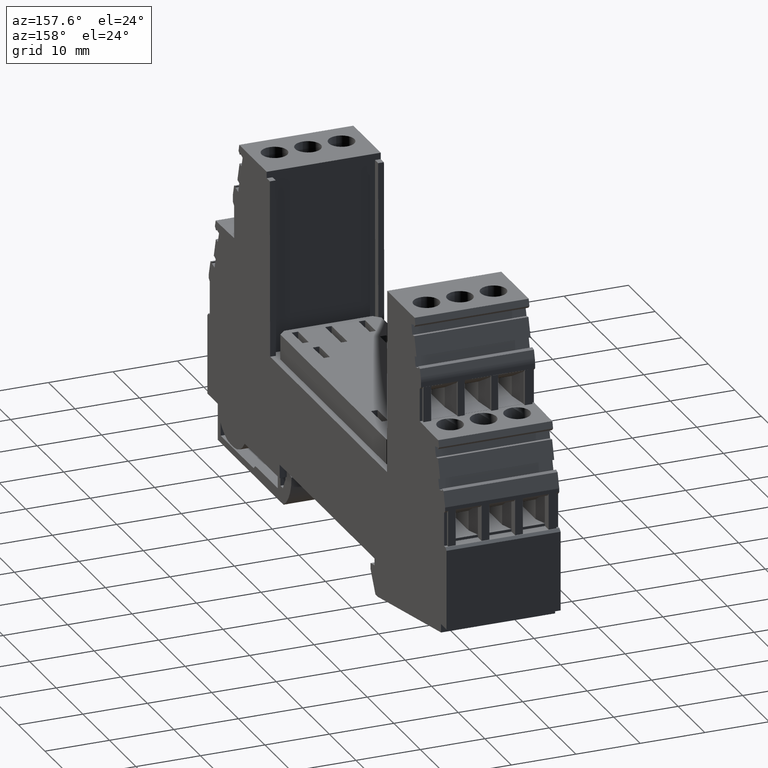
[diagram: clean part render]
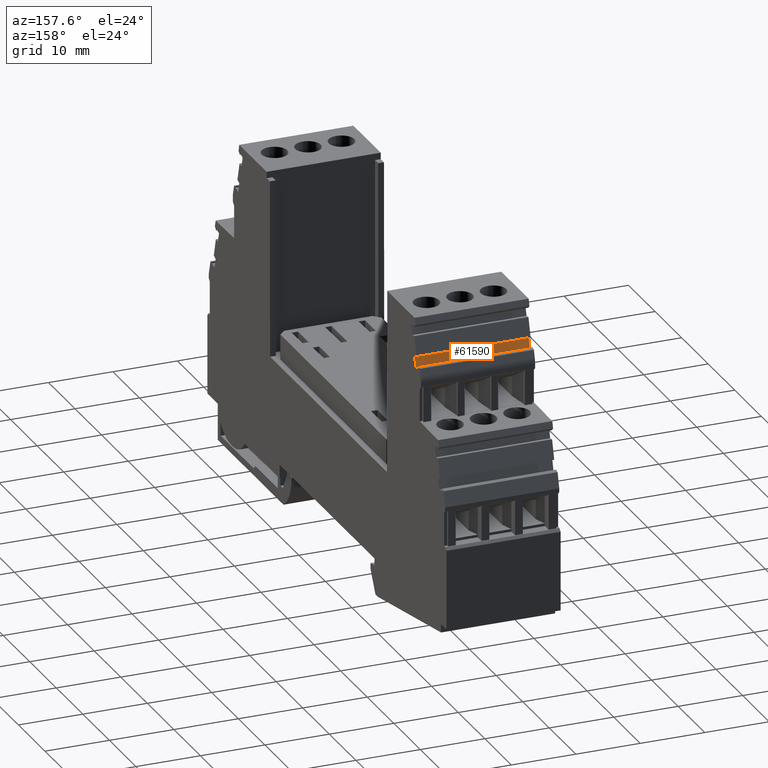
[diagram: same view with one face highlighted and labeled with its STEP entity id]
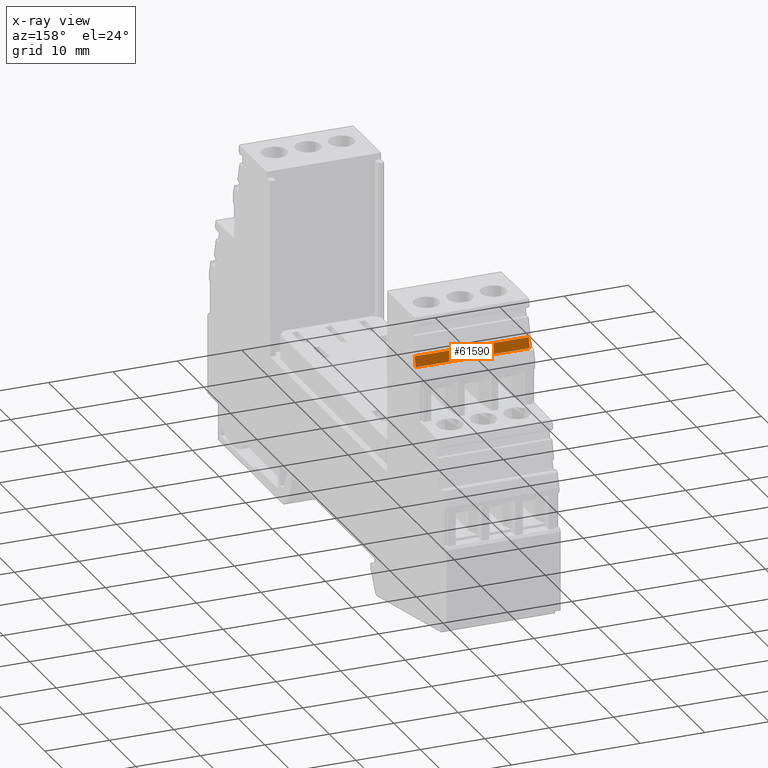
[diagram: x-ray of the same camera — body ghosted, the highlighted face saturated]
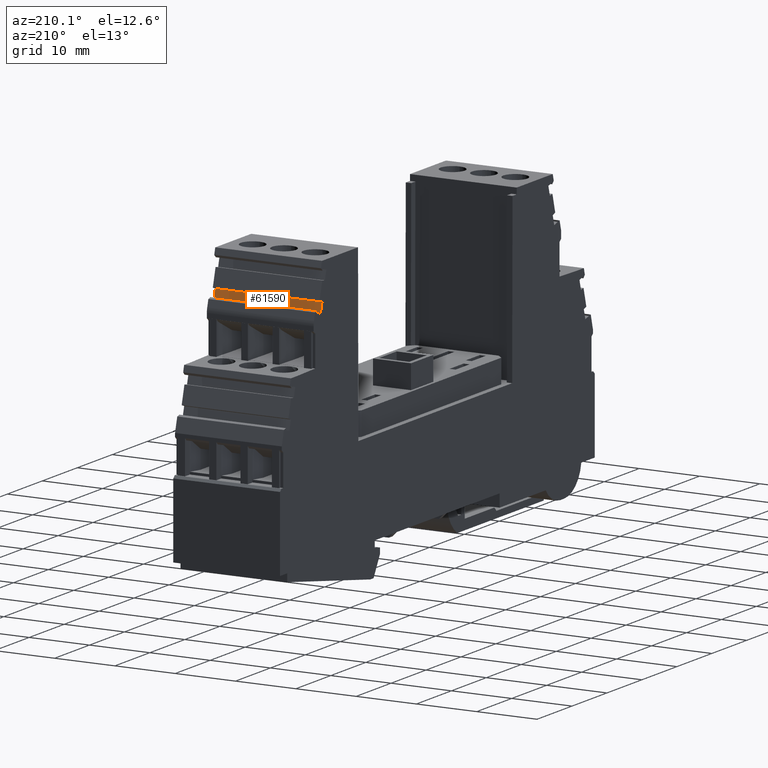
[diagram: same view with one face highlighted and labeled with its STEP entity id]
A machine part, auxiliary view. The second image highlights one B-rep face of the part: STEP entity #61590.
The next image is the same camera in x-ray: the body ghosted, the highlighted face saturated — about 0% of this face is hidden behind the body in this view.
A second angle (auxiliary view) of the same face is appended — the face is thin or edge-on in the first view.
In plain terms, the highlighted planar face has unit normal (-0, -0.9646, -0.2639).
Its self-contained STEP definition (entity closure, byte-faithful):
#2680=CARTESIAN_POINT('',(102.339205808823,55.0005950584348,-37.3));
#2690=VERTEX_POINT('',#2680);
#2720=CARTESIAN_POINT('',(122.774976116623,-19.6999999999998,-37.3));
#2730=DIRECTION('',(-0.263873049965258,0.96455741845783,0.));
#2740=VECTOR('',#2730,1.);
#2750=LINE('',#2720,#2740);
#2760=CARTESIAN_POINT('',(102.760580329029,53.4603092298247,-37.3));
#2770=VERTEX_POINT('',#2760);
#2780=EDGE_CURVE('',#2770,#2690,#2750,.T.);
#18200=CARTESIAN_POINT('',(102.760580329029,53.4603092298247,-55.));
#18210=VERTEX_POINT('',#18200);
#18240=CARTESIAN_POINT('',(111.772264199668,20.5191410000002,-55.));
#18250=DIRECTION('',(0.263873049965258,-0.96455741845783,
-2.37408957350071E-21));
#18260=VECTOR('',#18250,1.);
#18270=LINE('',#18240,#18260);
#18280=CARTESIAN_POINT('',(102.339205808823,55.0005950584348,-55.));
#18290=VERTEX_POINT('',#18280);
#18300=EDGE_CURVE('',#18290,#18210,#18270,.T.);
#61380=CARTESIAN_POINT('',(102.628643804046,53.9425879390539,-55.));
#61390=DIRECTION('',(-0.96455741845783,-0.263873049965258,
1.18322510415871E-16));
#61400=DIRECTION('',(0.263873049965258,-0.96455741845783,
-2.37408957350071E-21));
#61410=AXIS2_PLACEMENT_3D('',#61380,#61390,#61400);
#61420=PLANE('',#61410);
#61430=ORIENTED_EDGE('',*,*,#18300,.F.);
#61440=CARTESIAN_POINT('',(102.760580329029,53.4603092298247,
-3.74999999990759));
#61450=DIRECTION('',(1.22464679914735E-16,7.51478429024835E-19,1.));
#61460=VECTOR('',#61450,1.);
#61470=LINE('',#61440,#61460);
#61480=EDGE_CURVE('',#18210,#2770,#61470,.T.);
#61490=ORIENTED_EDGE('',*,*,#61480,.F.);
#61500=ORIENTED_EDGE('',*,*,#2780,.F.);
#61510=CARTESIAN_POINT('',(102.339205808823,55.0005950584348,
-3.74999999990759));
#61520=DIRECTION('',(1.22464679914735E-16,7.51478429024842E-19,1.));
#61530=VECTOR('',#61520,1.);
#61540=LINE('',#61510,#61530);
#61550=EDGE_CURVE('',#18290,#2690,#61540,.T.);
#61560=ORIENTED_EDGE('',*,*,#61550,.T.);
#61570=EDGE_LOOP('',(#61560,#61500,#61490,#61430));
#61580=FACE_OUTER_BOUND('',#61570,.T.);
#61590=ADVANCED_FACE('',(#61580),#61420,.F.);